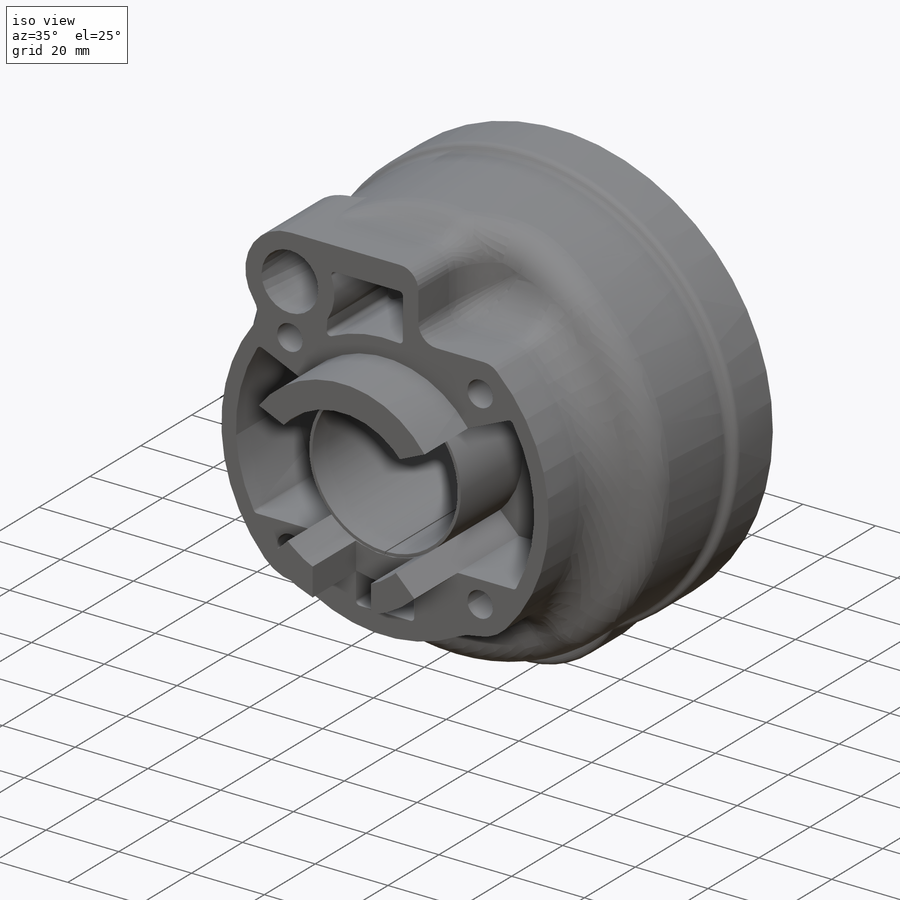
[diagram: iso view]
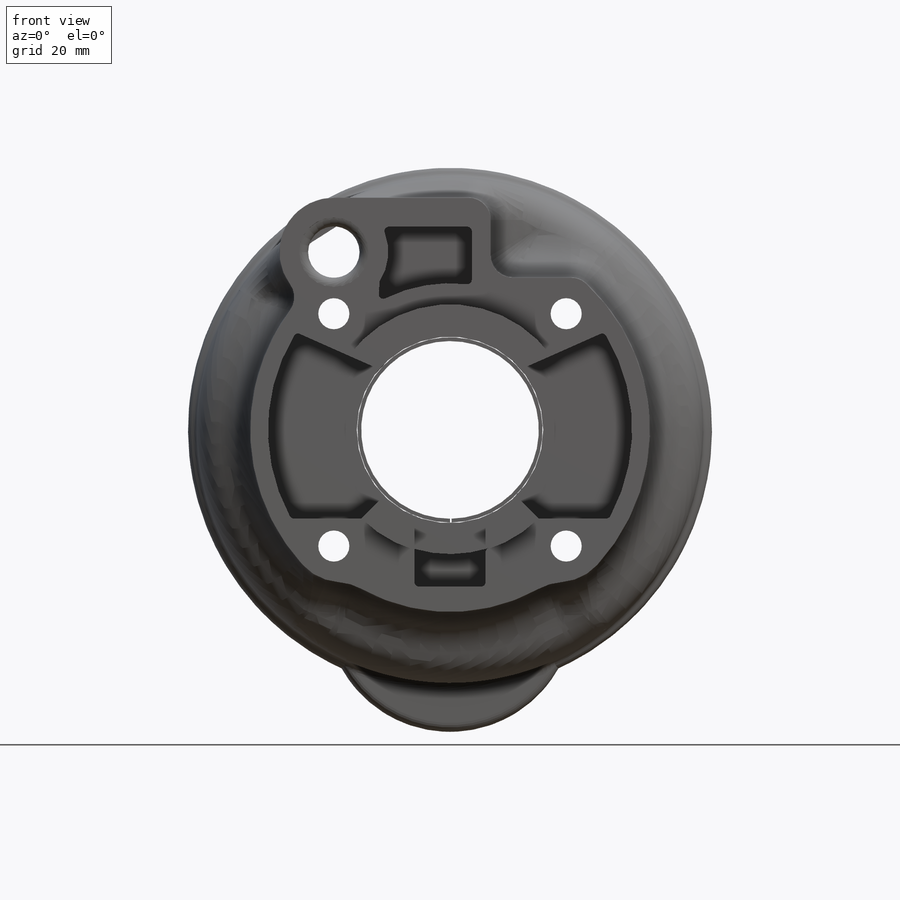
[diagram: front view]
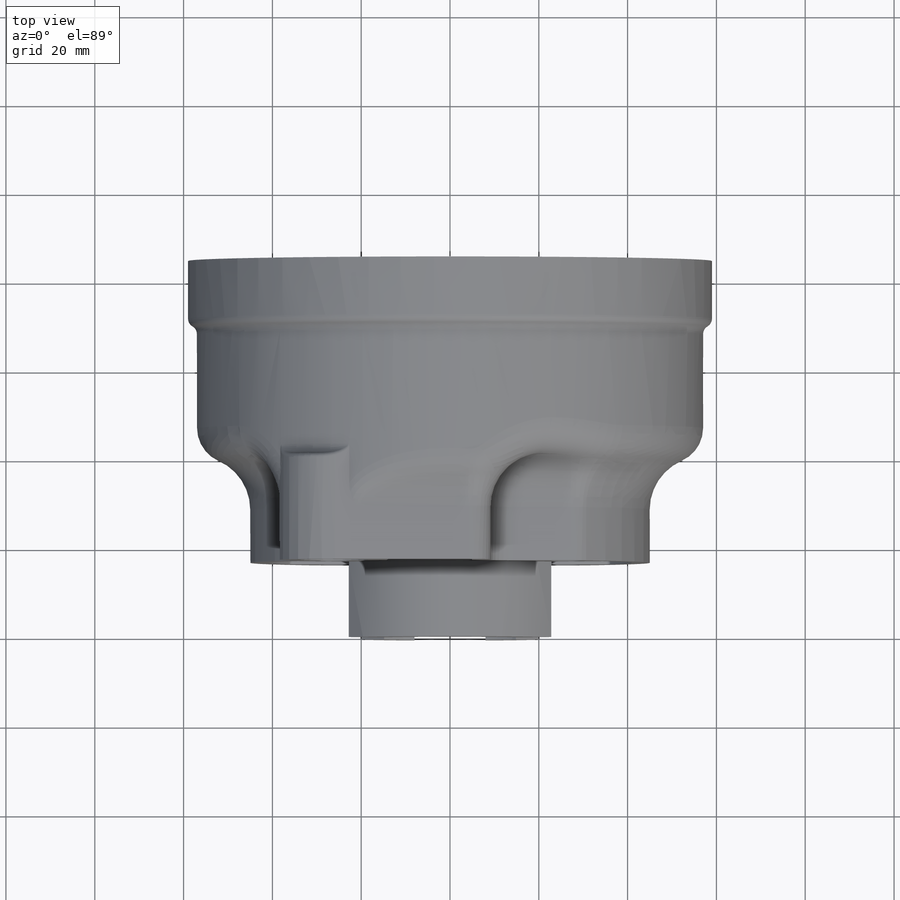
[diagram: top view]
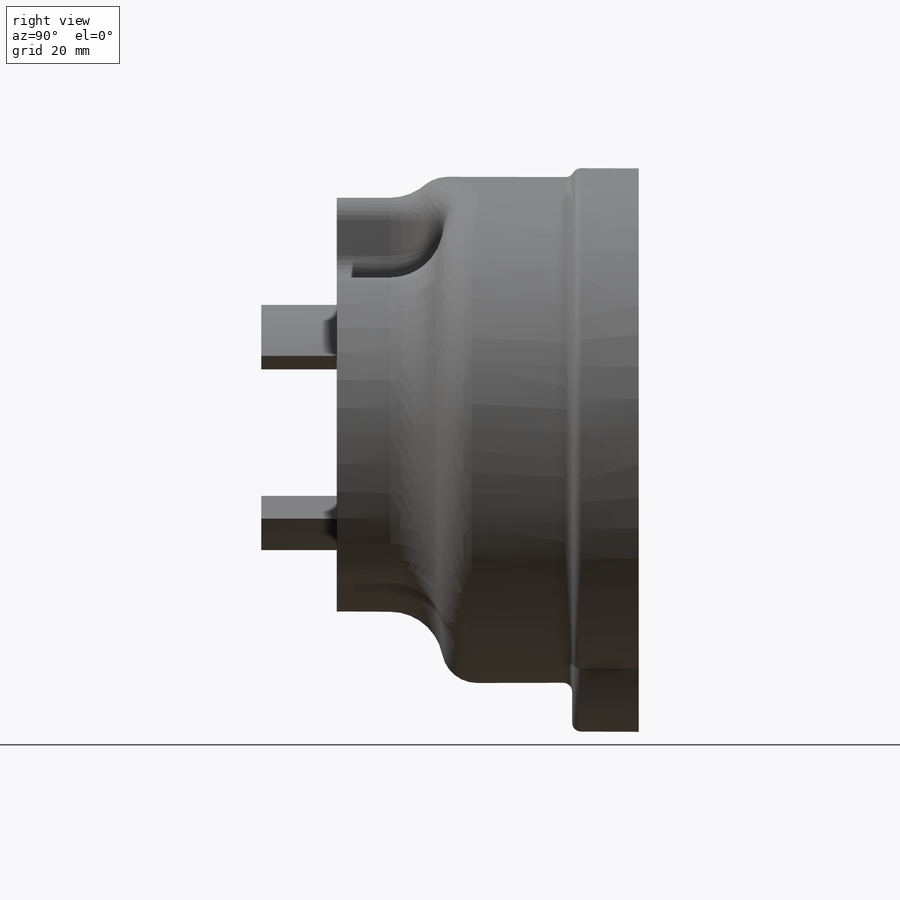
[diagram: right view]
SOLIDWORKS PART (.sldprt)
format: sldprt  version: not decoded by parser v0  size: 1,828,352 bytes
history: native  units: mm
features: fillet x12, sketch x8, extrude x4, plane x3, cut_extrude x3, material x1 (+8 scaffold rows collapsed)
feature tree (39):
  scaffold x8  (default folders/planes/origin — collapsed)
  material  "2014-T6"
  plane  "Plan de face"
  plane  "Plan de dessus"
  plane  "Plan de droite"
  sketch  "Esquisse1"  dims[c1.D1=40.3mm c1.D2=74.0mm c1.D3=7.0mm c1.D5=~21.837147mm c1.D6=~21.837147mm c2.D5=56.0mm c2.D6=45.0mm c2.D7=41.0mm c2.D17=~12.249632mm c2.D18=~15.595017mm c2.D20=33.0mm c2.D26=1.0mm c2.D27=1.0mm c2.D28=1.0mm c2.D29=1.0mm c2.D22=1.0mm c2.D30=5.0mm c2.D31=5.0mm c2.D32=1.0mm c2.D33=42.0mm c2.D34=28.0mm c2.D8=~16.182059mm c2.D9=~6.663442mm c2.D10=~13.208153mm c2.D11=~12.072667mm c2.D12=9.0mm c2.D13=~15.395713mm c2.D14=~15.395713mm c3.D13=8.0mm c3.D14=20.0mm c3.D15=18.0mm c3.D16=35.0mm c3.D19=~8.124294mm c3.D21=~20.205147mm c3.D22=13.2mm c3.D23=4.25mm c3.D24=4.68mm c3.D12=8.0mm c3.D25=8.5mm c3.D34=~7.93422mm c4.D34=~66.068545deg c4.D35=~19.559591mm c5.D34=~7.93422mm c6.D34=~66.068545deg c6.D4=4.0]
  extrude  "Boss.-Extru.1"  Depth=24mm
  sketch  "Esquisse2"  dims[D1=114.0mm]
  extrude  "Boss.-Extru.2"  Depth=44mm
  fillet  "Congé2"  Radius=12mm
  fillet  "Congé4"  Radius=12mm
  fillet  "Congé9"  Radius=12mm
  fillet  "Congé10"  Radius=12mm
  fillet  "Congé11"  Radius=12mm
  fillet  "Congé12"  Radius=8mm
  fillet  "Congé13"  Radius=2mm
  fillet  "Congé14"  Radius=1mm
  sketch  "Esquisse3"  dims[D2=56.0mm D3=40.0mm D1=2.0mm]
  extrude  "Boss.-Extru.4"  Depth=15mm
  fillet  "Congé15"  Radius=2mm
  fillet  "Congé16"  Radius=2mm
  sketch  "Esquisse4"  dims[D1=64.0mm D3=105.0mm D2=4.0mm]
  cut_extrude  "Enlèv. mat.-Extru.1"  Depth=30mm
  sketch  "Esquisse5"
  extrude  "Boss.-Extru.5"  Depth=17mm
  sketch  "Esquisse6"  dims[D1=2.0mm D2=8.0mm D3=6.0mm]
  cut_extrude  "Enlèv. mat.-Extru.2"  Depth=1mm
  sketch  "Esquisse7"  dims[D1=2.0mm]
  cut_extrude  "Enlèv. mat.-Extru.3"  [1 undecoded]
  fillet  "Congé17"  Radius=2mm
  sketch  "Esquisse8"  dims[c1.D1=20.0mm c2.D1=359.0deg c2.D3=0.85mm c2.D4=1.0mm c2.D7=0.0mm]
  fillet  "Congé18"  Radius=1mm
decode coverage: 25 of 27 modeling features carry decoded parameters
note: ~ marks probable driven/reference dimensions
note: 1 parameter value undecoded
note: suppression state not decoded; provenance and decode notes live in map.json
